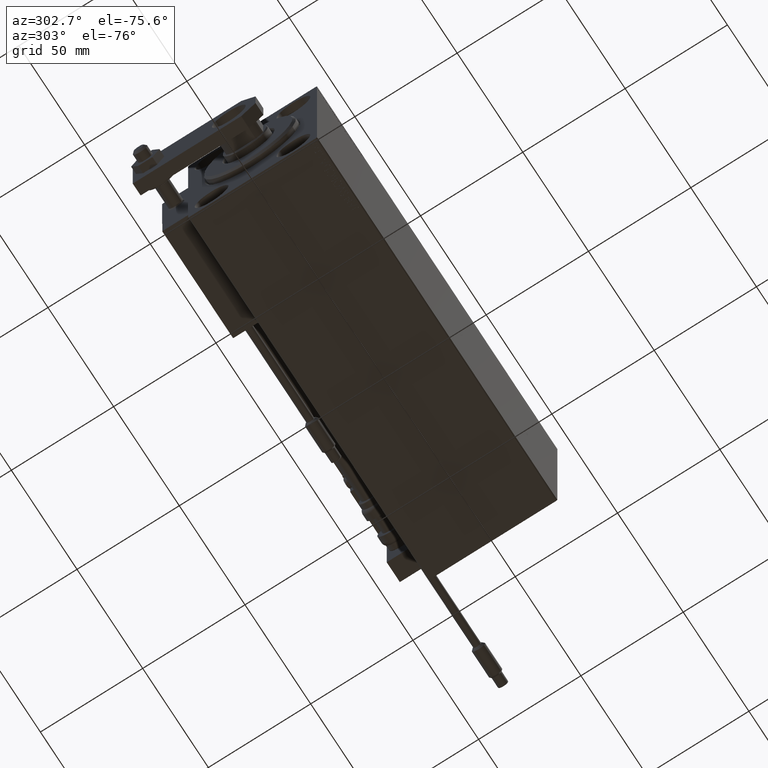
[diagram: clean part render]
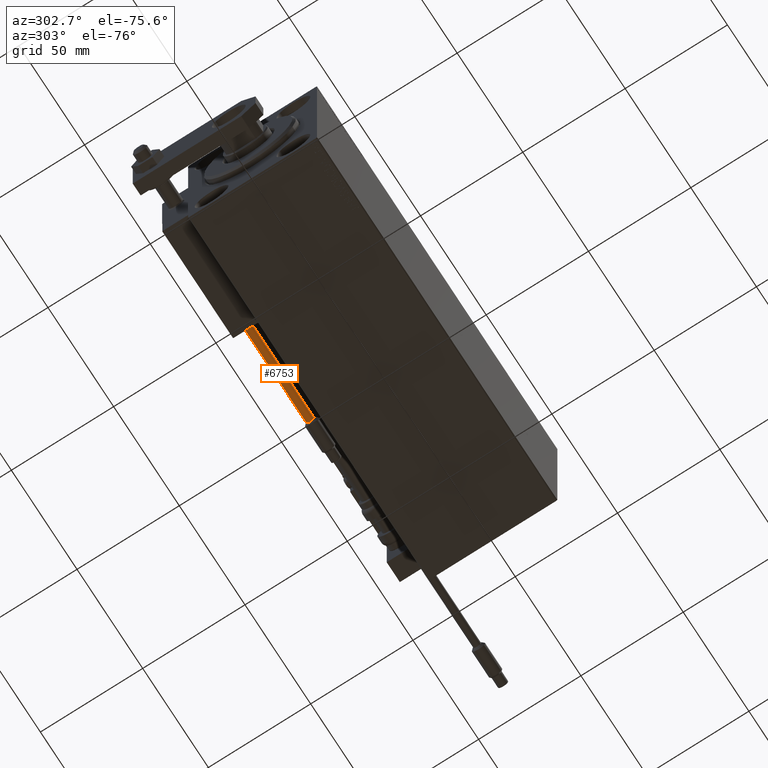
[diagram: same view with one face highlighted and labeled with its STEP entity id]
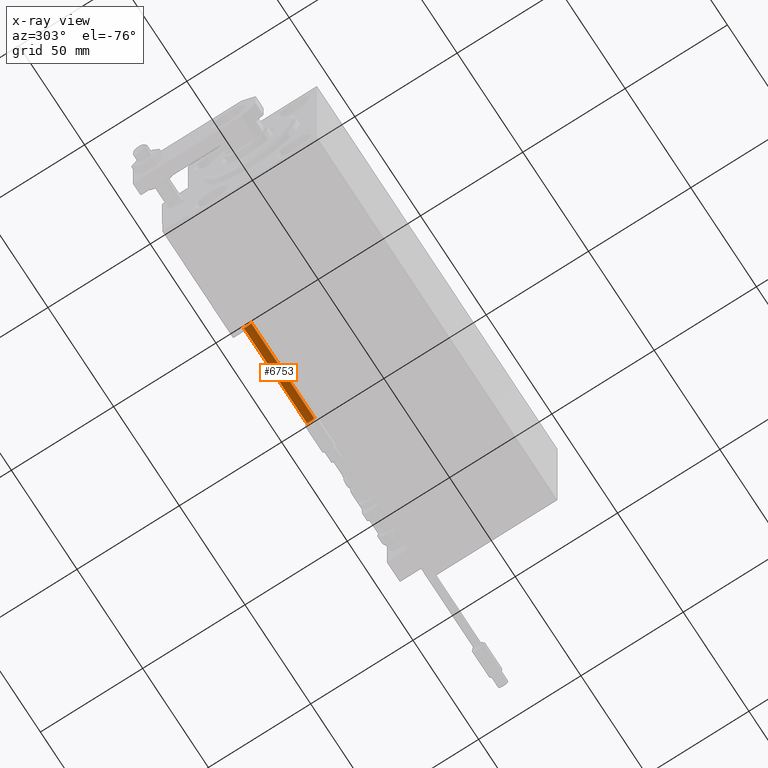
[diagram: x-ray of the same camera — body ghosted, the highlighted face saturated]
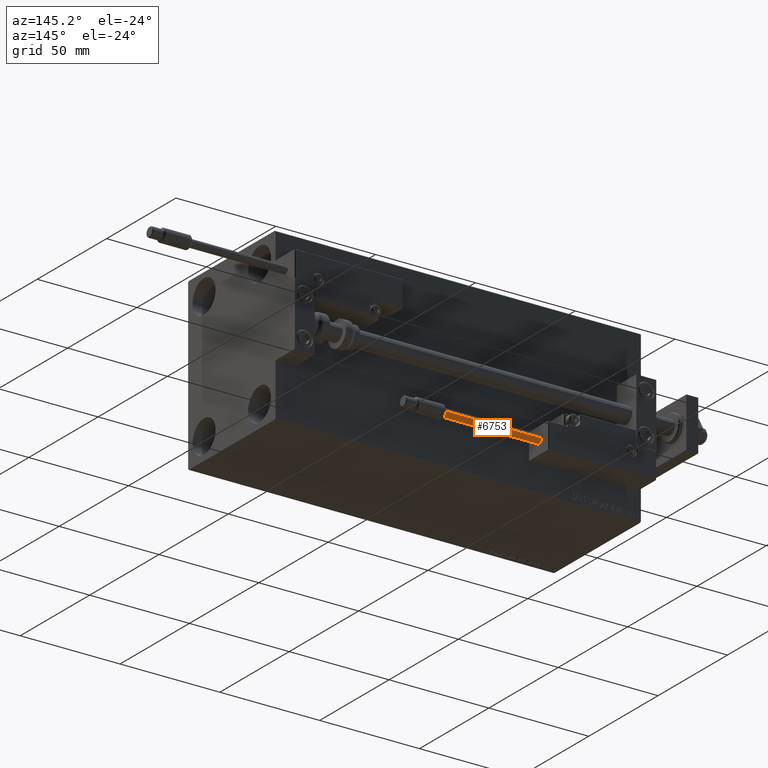
[diagram: same view with one face highlighted and labeled with its STEP entity id]
A machine part, auxiliary view. The second image highlights one B-rep face of the part: STEP entity #6753.
The next image is the same camera in x-ray: the body ghosted, the highlighted face saturated — about 0% of this face is hidden behind the body in this view.
A second angle (auxiliary view) of the same face is appended — the face is thin or edge-on in the first view.
In plain terms, the highlighted cylindrical surface (edge-blend (fillet) strip) has radius 1.9 mm, axis along (-1, 0, 0).
Its self-contained STEP definition (entity closure, byte-faithful):
#3245 = EDGE_CURVE ( 'NONE', #29271, #3267, #44347, .T. ) ;
#3267 = VERTEX_POINT ( 'NONE', #40495 ) ;
#3759 = CARTESIAN_POINT ( 'NONE',  ( 1.899999999999999467, 2.326828918379970872E-16, 0.000000000000000000 ) ) ;
#4501 = VECTOR ( 'NONE', #24907, 1000.000000000000000 ) ;
#4757 = FACE_OUTER_BOUND ( 'NONE', #6106, .T. ) ;
#6106 = EDGE_LOOP ( 'NONE', ( #37278, #34697, #36577, #50382 ) ) ;
#6753 = ADVANCED_FACE ( 'NONE', ( #4757 ), #43636, .T. ) ;
#8413 = DIRECTION ( 'NONE',  ( 0.000000000000000000, 0.000000000000000000, 1.000000000000000000 ) ) ;
#9300 = CARTESIAN_POINT ( 'NONE',  ( -1.899999999999999467, 0.000000000000000000, 48.00000000000000000 ) ) ;
#12533 = CIRCLE ( 'NONE', #14967, 1.899999999999999467 ) ;
#14967 = AXIS2_PLACEMENT_3D ( 'NONE', #40419, #46918, #27460 ) ;
#18487 = EDGE_CURVE ( 'NONE', #29271, #19444, #33515, .T. ) ;
#19444 = VERTEX_POINT ( 'NONE', #35888 ) ;
#20179 = DIRECTION ( 'NONE',  ( -0.000000000000000000, -0.000000000000000000, -1.000000000000000000 ) ) ;
#24017 = DIRECTION ( 'NONE',  ( 1.000000000000000000, 0.000000000000000000, 0.000000000000000000 ) ) ;
#24907 = DIRECTION ( 'NONE',  ( -0.000000000000000000, -0.000000000000000000, -1.000000000000000000 ) ) ;
#27460 = DIRECTION ( 'NONE',  ( 1.000000000000000000, 0.000000000000000000, 0.000000000000000000 ) ) ;
#29271 = VERTEX_POINT ( 'NONE', #46943 ) ;
#31683 = CARTESIAN_POINT ( 'NONE',  ( 1.899999999999999467, 2.326828918379970872E-16, 48.00000000000000000 ) ) ;
#32434 = AXIS2_PLACEMENT_3D ( 'NONE', #45094, #47738, #39543 ) ;
#33515 = CIRCLE ( 'NONE', #45797, 1.899999999999999467 ) ;
#34697 = ORIENTED_EDGE ( 'NONE', *, *, #18487, .F. ) ;
#35327 = VECTOR ( 'NONE', #20179, 1000.000000000000000 ) ;
#35888 = CARTESIAN_POINT ( 'NONE',  ( 1.899999999999999467, 2.326828918379970872E-16, 48.00000000000000000 ) ) ;
#36065 = VERTEX_POINT ( 'NONE', #3759 ) ;
#36577 = ORIENTED_EDGE ( 'NONE', *, *, #3245, .T. ) ;
#37278 = ORIENTED_EDGE ( 'NONE', *, *, #46161, .F. ) ;
#39543 = DIRECTION ( 'NONE',  ( -1.000000000000000000, 0.000000000000000000, 0.000000000000000000 ) ) ;
#40419 = CARTESIAN_POINT ( 'NONE',  ( 0.000000000000000000, 0.000000000000000000, 0.000000000000000000 ) ) ;
#40495 = CARTESIAN_POINT ( 'NONE',  ( -1.899999999999999467, 0.000000000000000000, 0.000000000000000000 ) ) ;
#43460 = CARTESIAN_POINT ( 'NONE',  ( 0.000000000000000000, 0.000000000000000000, 48.00000000000000000 ) ) ;
#43636 = CYLINDRICAL_SURFACE ( 'NONE', #32434, 1.899999999999999467 ) ;
#44347 = LINE ( 'NONE', #9300, #4501 ) ;
#45094 = CARTESIAN_POINT ( 'NONE',  ( 0.000000000000000000, 0.000000000000000000, 48.00000000000000000 ) ) ;
#45797 = AXIS2_PLACEMENT_3D ( 'NONE', #43460, #8413, #24017 ) ;
#45855 = LINE ( 'NONE', #31683, #35327 ) ;
#46161 = EDGE_CURVE ( 'NONE', #19444, #36065, #45855, .T. ) ;
#46918 = DIRECTION ( 'NONE',  ( 0.000000000000000000, 0.000000000000000000, 1.000000000000000000 ) ) ;
#46943 = CARTESIAN_POINT ( 'NONE',  ( -1.899999999999999467, 0.000000000000000000, 48.00000000000000000 ) ) ;
#47738 = DIRECTION ( 'NONE',  ( -0.000000000000000000, -0.000000000000000000, -1.000000000000000000 ) ) ;
#48140 = EDGE_CURVE ( 'NONE', #3267, #36065, #12533, .T. ) ;
#50382 = ORIENTED_EDGE ( 'NONE', *, *, #48140, .T. ) ;